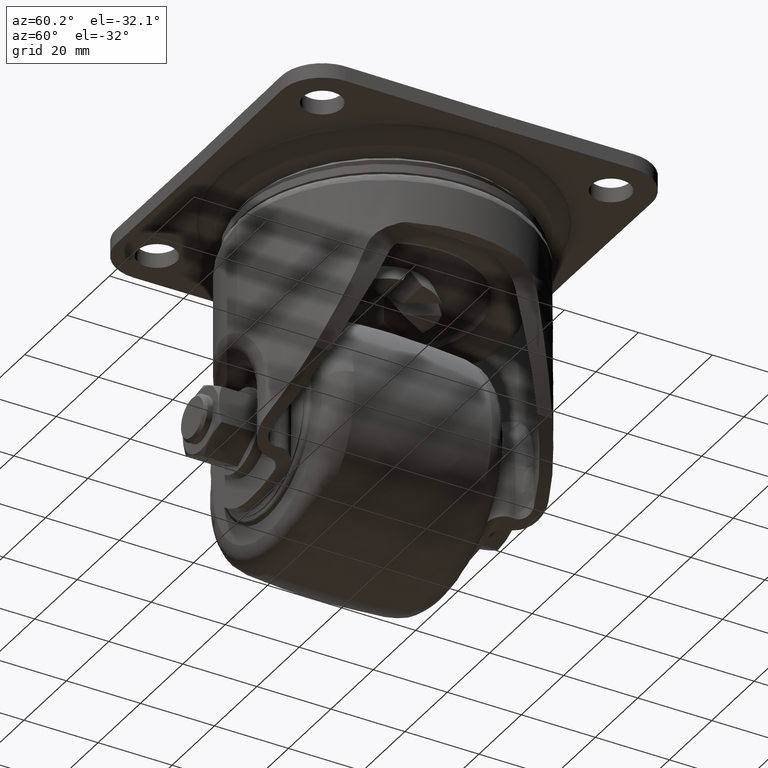
[diagram: clean part render]
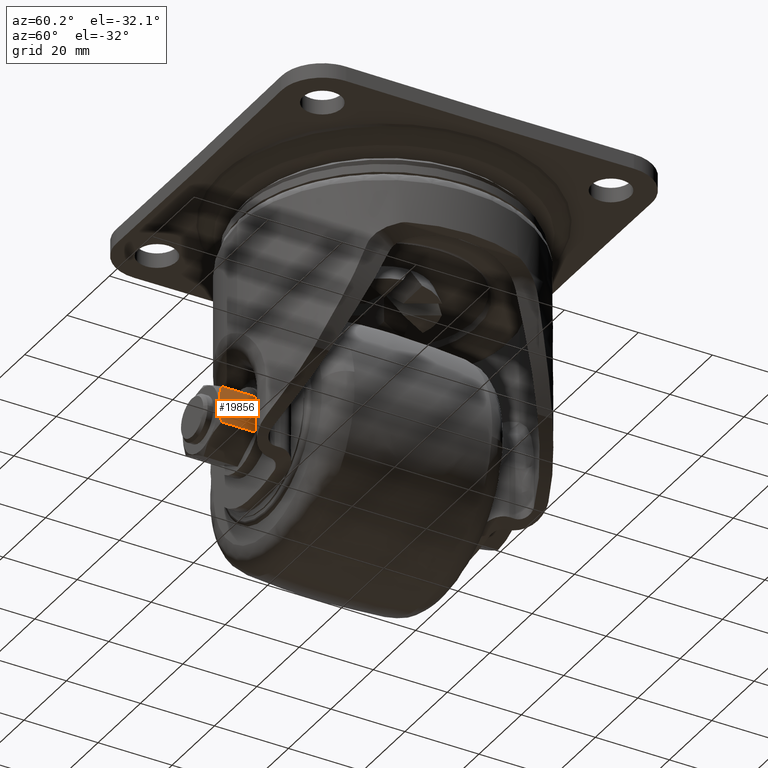
[diagram: same view with one face highlighted and labeled with its STEP entity id]
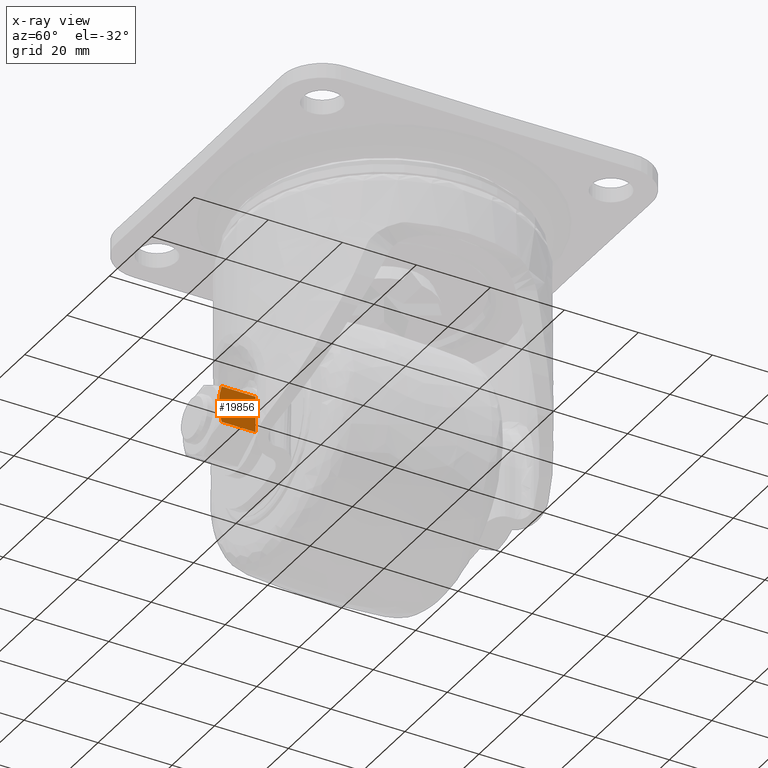
[diagram: x-ray of the same camera — body ghosted, the highlighted face saturated]
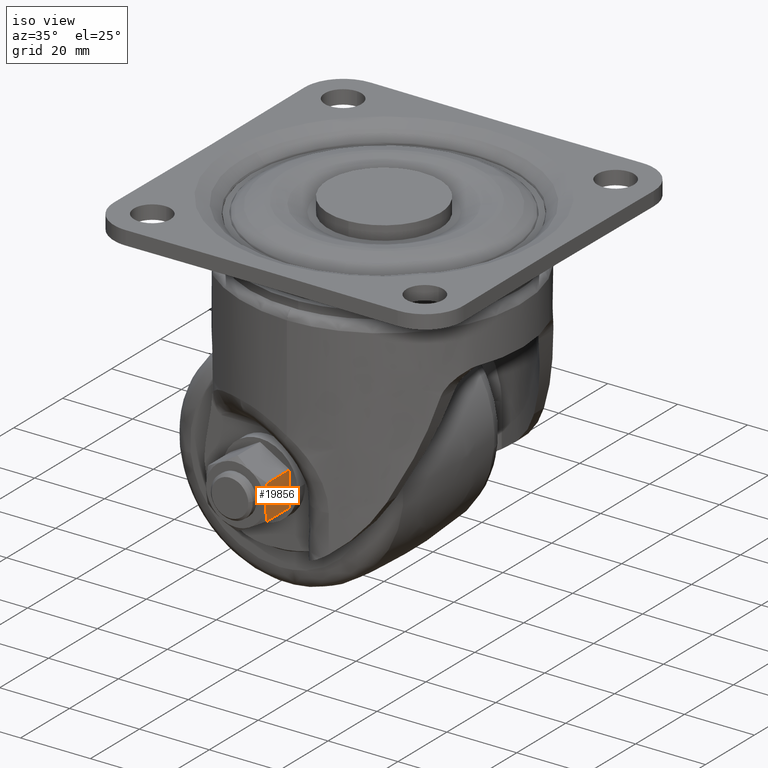
[diagram: same view with one face highlighted and labeled with its STEP entity id]
A machine part, auxiliary view. The second image highlights one B-rep face of the part: STEP entity #19856.
The next image is the same camera in x-ray: the body ghosted, the highlighted face saturated — about 0% of this face is hidden behind the body in this view.
A second angle (iso view) of the same face is appended — the face is thin or edge-on in the first view.
In plain terms, the highlighted face is a freeform B-spline surface patch.
Its self-contained STEP definition (entity closure, byte-faithful):
#19616=CARTESIAN_POINT('',(-4.500013402524340,-41.297565164247352,-69.407479891957507));
#19617=VERTEX_POINT('',#19616);
#19637=CARTESIAN_POINT('',(-4.500012820541310,-42.056567748860601,-64.425812222841216));
#19638=VERTEX_POINT('',#19637);
#19639=CARTESIAN_POINT('',(-4.500012820541310,-42.056567748860601,-64.425812222841216));
#19640=CARTESIAN_POINT('',(-4.500012823306826,-42.056690404954239,-64.450052727517445));
#19641=CARTESIAN_POINT('',(-4.500012826072871,-42.056752963885252,-64.474288718725617));
#19642=CARTESIAN_POINT('',(-4.500012876193646,-42.056796732916979,-64.913279068291857));
#19643=CARTESIAN_POINT('',(-4.500012923703207,-42.039224503821352,-65.326715113379606));
#19644=CARTESIAN_POINT('',(-4.500013019017828,-41.970579878099279,-66.151071245575793));
#19645=CARTESIAN_POINT('',(-4.500013066822666,-41.919532283030470,-66.561993195351789));
#19646=CARTESIAN_POINT('',(-4.500013162697266,-41.787402811380062,-67.381581434834132));
#19647=CARTESIAN_POINT('',(-4.500013210790895,-41.706302419291127,-67.790453965389773));
#19648=CARTESIAN_POINT('',(-4.500013307106191,-41.518592720923891,-68.605433902800272));
#19649=CARTESIAN_POINT('',(-4.500013354942421,-41.412801143707533,-69.008290049569737));
#19650=CARTESIAN_POINT('',(-4.500013402524340,-41.297565164247352,-69.407479891957507));
#19651=B_SPLINE_CURVE_WITH_KNOTS('',3,(#19639,#19640,#19641,#19642,#19643,#19644,#19645,#19646,#19647,#19648,#19649,#19650),.UNSPECIFIED.,.F.,.U.,(4,2,2,2,2,4),(0.492697120017883,0.499999999999995,0.624999999999996,0.749999999999997,0.874999999999999,1.0),.UNSPECIFIED.);
#19652=EDGE_CURVE('',#19638,#19617,#19651,.T.);
#19682=CARTESIAN_POINT('',(-4.500013402524320,-41.297565164247352,-59.592502108042403));
#19683=VERTEX_POINT('',#19682);
#19684=CARTESIAN_POINT('',(-4.500013402524320,-41.297565164247352,-59.592502108042403));
#19685=CARTESIAN_POINT('',(-4.500013305078299,-41.526563668707517,-60.385777568867503));
#19686=CARTESIAN_POINT('',(-4.500013207115233,-41.717287703187459,-61.189463341508898));
#19687=CARTESIAN_POINT('',(-4.500013083687485,-41.883597435122752,-62.213679833940951));
#19688=CARTESIAN_POINT('',(-4.500013046585825,-41.928061438566679,-62.522421398063607));
#19689=CARTESIAN_POINT('',(-4.500013009364708,-41.963682764171253,-62.833568091078867));
#19690=CARTESIAN_POINT('',(-4.500012984523091,-41.985391643408661,-63.041553719988833));
#19691=CARTESIAN_POINT('',(-4.500012972074249,-41.995236038700916,-63.145943705518512));
#19692=CARTESIAN_POINT('',(-4.500012912858367,-42.037004053276092,-63.643294005411008));
#19693=CARTESIAN_POINT('',(-4.500012866486927,-42.054590800863082,-64.035139284306567));
#19694=CARTESIAN_POINT('',(-4.500012820541310,-42.056567748860601,-64.425812222841216));
#19695=B_SPLINE_CURVE_WITH_KNOTS('',3,(#19684,#19685,#19686,#19687,#19688,#19689,#19690,#19691,#19692,#19693,#19694),.UNSPECIFIED.,.F.,.U.,(4,2,1,2,2,4),(0.0,0.250000000000000,0.312499999999999,0.343749999999996,0.374999999999994,0.492697120017883),.UNSPECIFIED.);
#19696=EDGE_CURVE('',#19683,#19638,#19695,.T.);
#19819=CARTESIAN_POINT('',(-4.500034000000110,-32.100005999999951,-69.407467999999994));
#19820=VERTEX_POINT('',#19819);
#19826=CARTESIAN_POINT('',(-4.500013402524340,-41.297565164247352,-69.407479891957507));
#19827=CARTESIAN_POINT('',(-4.500034000000110,-32.100005999999951,-69.407467999999994));
#19828=QUASI_UNIFORM_CURVE('',1,(#19826,#19827),.UNSPECIFIED.,.F.,.U.);
#19829=EDGE_CURVE('',#19617,#19820,#19828,.T.);
#19834=CARTESIAN_POINT('',(-4.500034000000110,-42.553898025568422,-69.897738013240740));
#19835=CARTESIAN_POINT('',(-4.500034000000110,-42.553898025568422,-59.102243723500962));
#19836=CARTESIAN_POINT('',(-4.500034000000110,-31.602675491138079,-69.897738013240740));
#19837=CARTESIAN_POINT('',(-4.500034000000110,-31.602675491138079,-59.102243723500962));
#19838=B_SPLINE_SURFACE_WITH_KNOTS('',1,1,((#19834,#19836),(#19835,#19837)),.UNSPECIFIED.,.F.,.F.,.U.,(2,2),(2,2),(0.0,10.795494289739789),(0.0,10.951222534430350),.UNSPECIFIED.);
#19839=ORIENTED_EDGE('',*,*,#19696,.T.);
#19840=ORIENTED_EDGE('',*,*,#19652,.T.);
#19841=ORIENTED_EDGE('',*,*,#19829,.T.);
#19842=CARTESIAN_POINT('',(-4.500034000000110,-32.100005999999951,-59.592513999999902));
#19843=VERTEX_POINT('',#19842);
#19844=CARTESIAN_POINT('',(-4.500034000000110,-32.100005999999951,-69.407467999999994));
#19845=CARTESIAN_POINT('',(-4.500034000000110,-32.100005999999951,-59.592513999999902));
#19846=QUASI_UNIFORM_CURVE('',1,(#19844,#19845),.UNSPECIFIED.,.F.,.U.);
#19847=EDGE_CURVE('',#19820,#19843,#19846,.T.);
#19848=ORIENTED_EDGE('',*,*,#19847,.T.);
#19849=CARTESIAN_POINT('',(-4.500013402524320,-41.297565164247352,-59.592502108042403));
#19850=CARTESIAN_POINT('',(-4.500034000000110,-32.100005999999951,-59.592513999999902));
#19851=QUASI_UNIFORM_CURVE('',1,(#19849,#19850),.UNSPECIFIED.,.F.,.U.);
#19852=EDGE_CURVE('',#19683,#19843,#19851,.T.);
#19853=ORIENTED_EDGE('',*,*,#19852,.F.);
#19854=EDGE_LOOP('',(#19839,#19840,#19841,#19848,#19853));
#19855=FACE_OUTER_BOUND('',#19854,.T.);
#19856=ADVANCED_FACE('',(#19855),#19838,.F.);